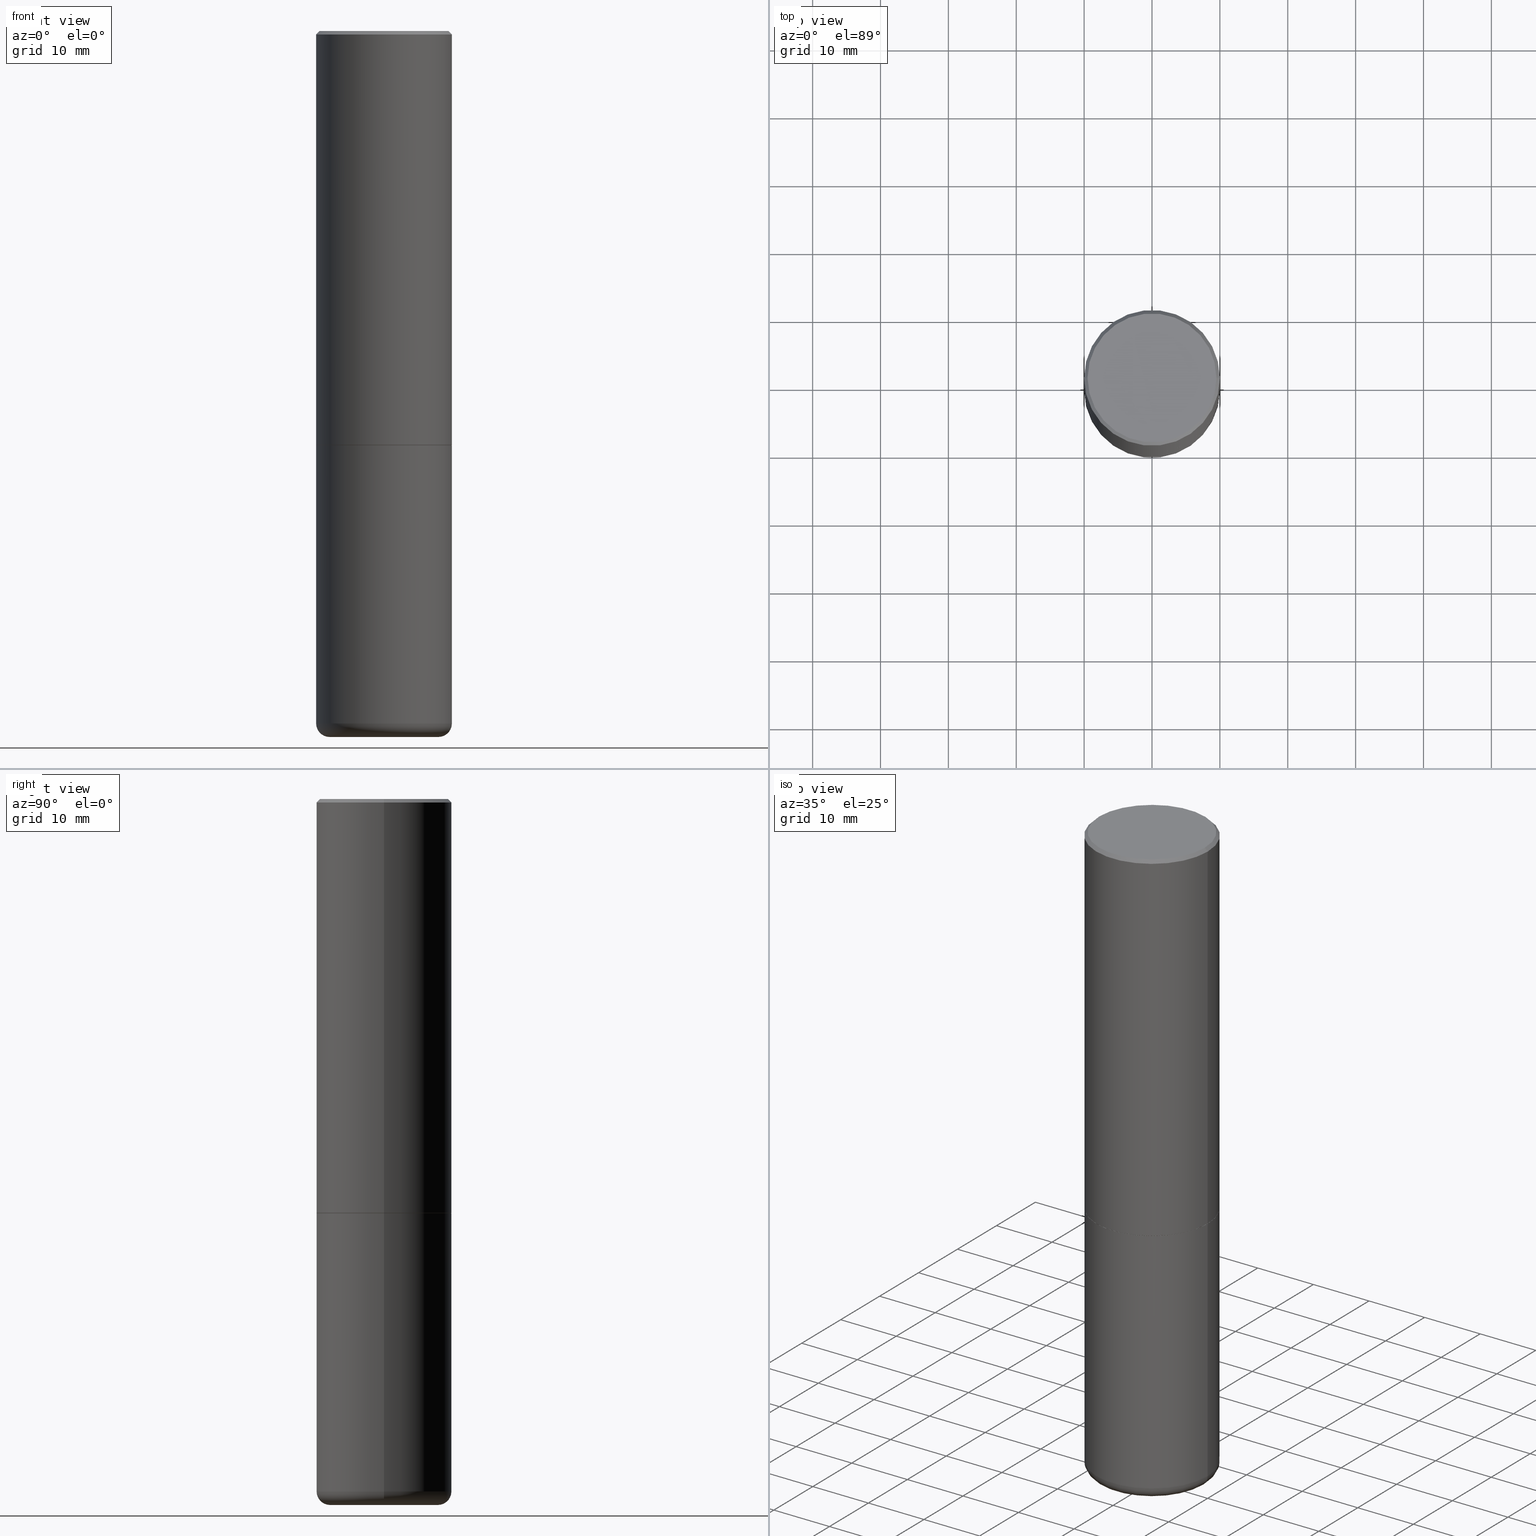
[diagram: canonical four-view strip — front | top / right | iso, engineering-drawing reading convention]
A machine part, canonical four-view strip (front | top / right | iso — engineering-drawing reading convention). The complete STEP part file that produces these views, byte-faithful:
ISO-10303-21;
HEADER;
FILE_DESCRIPTION (( 'STEP AP203' ),
    '1' );
FILE_NAME ('47064.STEP',
    '2024-03-05T16:49:10',
    ( '' ),
    ( '' ),
    'SwSTEP 2.0',
    'SolidWorks 2023',
    '' );
FILE_SCHEMA (( 'CONFIG_CONTROL_DESIGN' ));
ENDSEC;

DATA;
#1 = EDGE_CURVE ( 'NONE', #387, #342, #312, .T. ) ;
#2 = ORIENTED_EDGE ( 'NONE', *, *, #54, .T. ) ;
#3 = CARTESIAN_POINT ( 'NONE',  ( 1.001297202692504102E-28, -1.429587034189325834E-14, -4.094500000000000028 ) ) ;
#4 = CIRCLE ( 'NONE', #60, 0.3937000000000000499 ) ;
#5 = CIRCLE ( 'NONE', #304, 0.3937000000000000499 ) ;
#6 = LINE ( 'NONE', #330, #52 ) ;
#7 = LINE ( 'NONE', #104, #93 ) ;
#8 = EDGE_CURVE ( 'NONE', #122, #282, #148, .T. ) ;
#9 = PERSON_AND_ORGANIZATION_ROLE ( 'creator' ) ;
#10 = AXIS2_PLACEMENT_3D ( 'NONE', #226, #199, #323 ) ;
#11 = FACE_OUTER_BOUND ( 'NONE', #56, .T. ) ;
#12 = CARTESIAN_POINT ( 'NONE',  ( 0.000000000000000000, 0.000000000000000000, 0.000000000000000000 ) ) ;
#13 = DIRECTION ( 'NONE',  ( 1.000000000000000000, -6.982962677686268288E-15, 0.000000000000000000 ) ) ;
#14 = CARTESIAN_POINT ( 'NONE',  ( 0.3937000000000002720, -1.113084250823194063E-14, -2.400600000000000289 ) ) ;
#15 = DIRECTION ( 'NONE',  ( -1.000000000000000000, 6.982962677686265922E-15, -4.876176775795935793E-29 ) ) ;
#16 = CARTESIAN_POINT ( 'NONE',  ( 0.3736999999999997546, -2.667287895133366781E-15, 2.219626494852398384E-16 ) ) ;
#17 = CARTESIAN_POINT ( 'NONE',  ( 0.3926999999999999935, -1.112735102689309604E-14, -2.401600000000000179 ) ) ;
#18 = CONICAL_SURFACE ( 'NONE', #378, 0.3937000000000000499, 0.7853981633974472798 ) ;
#19 = AXIS2_PLACEMENT_3D ( 'NONE', #193, #318, #198 ) ;
#20 = CC_DESIGN_APPROVAL ( #47, ( #188 ) ) ;
#21 = VERTEX_POINT ( 'NONE', #66 ) ;
#22 = ORIENTED_EDGE ( 'NONE', *, *, #339, .T. ) ;
#23 = ADVANCED_FACE ( 'NONE', ( #359 ), #18, .T. ) ;
#24 = EDGE_LOOP ( 'NONE', ( #59, #129, #281, #131 ) ) ;
#25 = AXIS2_PLACEMENT_3D ( 'NONE', #136, #267, #108 ) ;
#26 = APPROVAL_PERSON_ORGANIZATION ( #116, #203, #373 ) ;
#27 = ORIENTED_EDGE ( 'NONE', *, *, #249, .F. ) ;
#28 = CARTESIAN_POINT ( 'NONE',  ( 9.820513631878272860E-29, -1.402109076052630500E-14, -4.015800000000000480 ) ) ;
#29 = DIRECTION ( 'NONE',  ( 1.000000000000000000, -6.982962677686267499E-15, 0.000000000000000000 ) ) ;
#30 = DIRECTION ( 'NONE',  ( -2.445468806185136597E-29, 3.491481338843145583E-15, 1.000000000000000000 ) ) ;
#31 = CARTESIAN_POINT ( 'NONE',  ( 4.890937612370294178E-31, -6.982962677686321191E-17, -0.02000000000000008715 ) ) ;
#32 = ORIENTED_EDGE ( 'NONE', *, *, #416, .T. ) ;
#33 = CARTESIAN_POINT ( 'NONE',  ( 0.3937000000000000499, -2.749192406205083217E-15, 1.919750796630860172E-29 ) ) ;
#34 = CARTESIAN_POINT ( 'NONE',  ( 5.870592416128038746E-29, -8.381650102026855834E-15, -2.400600000000000289 ) ) ;
#35 = AXIS2_PLACEMENT_3D ( 'NONE', #299, #58, #180 ) ;
#36 = ADVANCED_FACE ( 'NONE', ( #414 ), #177, .T. ) ;
#37 = CARTESIAN_POINT ( 'NONE',  ( 0.000000000000000000, 0.000000000000000000, 0.000000000000000000 ) ) ;
#38 = COORDINATED_UNIVERSAL_TIME_OFFSET ( 5, 0, .BEHIND. ) ;
#39 = DIRECTION ( 'NONE',  ( 1.000000000000000000, -6.982962677686265922E-15, 0.000000000000000000 ) ) ;
#40 = CARTESIAN_POINT ( 'NONE',  ( 0.3937000000000000499, -2.770807688499515734E-15, -0.02000000000000008715 ) ) ;
#41 = DIRECTION ( 'NONE',  ( 1.000000000000000000, -6.982962677686265133E-15, 0.000000000000000000 ) ) ;
#42 = VERTEX_POINT ( 'NONE', #106 ) ;
#43 = FACE_OUTER_BOUND ( 'NONE', #119, .T. ) ;
#44 = CARTESIAN_POINT ( 'NONE',  ( 5.873037884934224349E-29, -8.385141583365698841E-15, -2.401600000000000179 ) ) ;
#45 = AXIS2_PLACEMENT_3D ( 'NONE', #44, #385, #153 ) ;
#46 = DIRECTION ( 'NONE',  ( -0.7071067811866199593, 7.493145998870616062E-15, 0.7071067811864750752 ) ) ;
#47 = APPROVAL ( #215, 'UNSPECIFIED' ) ;
#48 = ADVANCED_FACE ( 'NONE', ( #242 ), #399, .T. ) ;
#49 = CARTESIAN_POINT ( 'NONE',  ( 5.873037884934224349E-29, -8.385141583365698841E-15, -2.401600000000000179 ) ) ;
#50 = EDGE_CURVE ( 'NONE', #183, #21, #270, .T. ) ;
#51 = LINE ( 'NONE', #179, #141 ) ;
#52 = VECTOR ( 'NONE', #128, 39.37007874015748143 ) ;
#53 = ORIENTED_EDGE ( 'NONE', *, *, #50, .T. ) ;
#54 = EDGE_CURVE ( 'NONE', #42, #357, #4, .T. ) ;
#55 = LINE ( 'NONE', #139, #216 ) ;
#56 = EDGE_LOOP ( 'NONE', ( #247, #114, #186, #91 ) ) ;
#57 = DIMENSIONAL_EXPONENTS ( 1.000000000000000000, 0.000000000000000000, 0.000000000000000000, 0.000000000000000000, 0.000000000000000000, 0.000000000000000000, 0.000000000000000000 ) ;
#58 = DIRECTION ( 'NONE',  ( -2.445468806185136597E-29, 3.491481338843145583E-15, 1.000000000000000000 ) ) ;
#59 = ORIENTED_EDGE ( 'NONE', *, *, #157, .F. ) ;
#60 = AXIS2_PLACEMENT_3D ( 'NONE', #164, #172, #209 ) ;
#61 = DIRECTION ( 'NONE',  ( -2.445468806185136597E-29, 3.491481338843145583E-15, 1.000000000000000000 ) ) ;
#62 = TOROIDAL_SURFACE ( 'NONE', #235, 0.3150000000000000577, 0.07869999999999965912 ) ;
#63 = CARTESIAN_POINT ( 'NONE',  ( -0.3937000000000003830, -1.428333113714341032E-15, -2.400600000000000289 ) ) ;
#64 = VERTEX_POINT ( 'NONE', #243 ) ;
#65 = DIRECTION ( 'NONE',  ( 1.000000000000000000, -6.982962677686267499E-15, 0.000000000000000000 ) ) ;
#66 = CARTESIAN_POINT ( 'NONE',  ( -0.3937000000000000499, -8.405709421258487133E-15, -2.401600000000000179 ) ) ;
#67 = PLANE ( 'NONE',  #256 ) ;
#68 = ADVANCED_FACE ( 'NONE', ( #333 ), #275, .T. ) ;
#69 = CARTESIAN_POINT ( 'NONE',  ( 0.3926999999999999935, -1.112735102689309604E-14, -2.401600000000000179 ) ) ;
#70 = VERTEX_POINT ( 'NONE', #232 ) ;
#71 = CARTESIAN_POINT ( 'NONE',  ( 0.3937000000000000499, -1.113433398957078206E-14, -2.401600000000000179 ) ) ;
#72 = CARTESIAN_POINT ( 'NONE',  ( -0.3736999999999997546, 2.644447966039789058E-15, 2.219626494852030085E-16 ) ) ;
#73 = CARTESIAN_POINT ( 'NONE',  ( 5.873037884934224349E-29, -8.385141583365698841E-15, -2.401600000000000179 ) ) ;
#74 = ADVANCED_FACE ( 'NONE', ( #159 ), #67, .F. ) ;
#75 = AXIS2_PLACEMENT_3D ( 'NONE', #295, #134, #272 ) ;
#76 = LOCAL_TIME ( 11, 49, 10.00000000000000000, #302 ) ;
#77 = CARTESIAN_POINT ( 'NONE',  ( -0.3926999999999999935, -5.594840260035785063E-15, -2.401600000000000179 ) ) ;
#78 = DIRECTION ( 'NONE',  ( -2.445468806185136597E-29, 3.491481338843145583E-15, 1.000000000000000000 ) ) ;
#79 = PRODUCT_DEFINITION ( 'UNKNOWN', '', #188, #230 ) ;
#80 = ADVANCED_FACE ( 'NONE', ( #252 ), #166, .T. ) ;
#81 = CIRCLE ( 'NONE', #271, 0.3937000000000000499 ) ;
#82 = FACE_OUTER_BOUND ( 'NONE', #278, .T. ) ;
#83 = EDGE_LOOP ( 'NONE', ( #53, #167 ) ) ;
#84 = CARTESIAN_POINT ( 'NONE',  ( -0.3150000000000000577, -1.164067236704386707E-14, -4.094500000000000028 ) ) ;
#85 = AXIS2_PLACEMENT_3D ( 'NONE', #12, #269, #273 ) ;
#86 = AXIS2_PLACEMENT_3D ( 'NONE', #328, #317, #408 ) ;
#87 = ORIENTED_EDGE ( 'NONE', *, *, #123, .F. ) ;
#88 = FACE_OUTER_BOUND ( 'NONE', #374, .T. ) ;
#89 = ORIENTED_EDGE ( 'NONE', *, *, #383, .F. ) ;
#90 =( LENGTH_UNIT ( ) NAMED_UNIT ( * ) SI_UNIT ( $, .METRE. ) );
#91 = ORIENTED_EDGE ( 'NONE', *, *, #137, .F. ) ;
#92 = LINE ( 'NONE', #69, #404 ) ;
#93 = VECTOR ( 'NONE', #171, 39.37007874015748143 ) ;
#94 = LINE ( 'NONE', #77, #287 ) ;
#95 = EDGE_CURVE ( 'NONE', #342, #340, #92, .T. ) ;
#96 = CYLINDRICAL_SURFACE ( 'NONE', #221, 0.3937000000000000499 ) ;
#97 = CARTESIAN_POINT ( 'NONE',  ( 5.873037884934224349E-29, -8.385141583365698841E-15, -2.401600000000000179 ) ) ;
#98 = AXIS2_PLACEMENT_3D ( 'NONE', #231, #351, #65 ) ;
#99 = APPROVAL_PERSON_ORGANIZATION ( #369, #354, #372 ) ;
#100 = DIRECTION ( 'NONE',  ( 1.000000000000000000, -6.982962677686267499E-15, 0.000000000000000000 ) ) ;
#101 = DIRECTION ( 'NONE',  ( -2.445468806185136597E-29, 3.491481338843145583E-15, 1.000000000000000000 ) ) ;
#102 = CLOSED_SHELL ( 'NONE', ( #204, #143, #239, #307, #234, #345 ) ) ;
#103 = CC_DESIGN_APPROVAL ( #354, ( #211 ) ) ;
#104 = CARTESIAN_POINT ( 'NONE',  ( -0.3937000000000000499, 2.679362779428219918E-15, -0.02000000000000008715 ) ) ;
#105 = DIRECTION ( 'NONE',  ( 0.000000000000000000, 0.000000000000000000, 1.000000000000000000 ) ) ;
#106 = CARTESIAN_POINT ( 'NONE',  ( -0.3937000000000000499, 2.679362779428219918E-15, -0.02000000000000008715 ) ) ;
#107 = EDGE_CURVE ( 'NONE', #282, #122, #400, .T. ) ;
#108 = DIRECTION ( 'NONE',  ( 1.000000000000000000, -6.982962677686265133E-15, 0.000000000000000000 ) ) ;
#109 = CC_DESIGN_PERSON_AND_ORGANIZATION_ASSIGNMENT ( #308, #174, ( #211 ) ) ;
#110 = VECTOR ( 'NONE', #194, 39.37007874015748143 ) ;
#111 = APPROVAL_ROLE ( '' ) ;
#112 = ORIENTED_EDGE ( 'NONE', *, *, #213, .T. ) ;
#113 = DIRECTION ( 'NONE',  ( -2.445468806185136597E-29, 3.491481338843145583E-15, 1.000000000000000000 ) ) ;
#114 = ORIENTED_EDGE ( 'NONE', *, *, #249, .T. ) ;
#115 = PERSON_AND_ORGANIZATION ( #303, #417 ) ;
#116 = PERSON_AND_ORGANIZATION ( #303, #417 ) ;
#117 = CC_DESIGN_PERSON_AND_ORGANIZATION_ASSIGNMENT ( #260, #9, ( #79 ) ) ;
#118 = ORIENTED_EDGE ( 'NONE', *, *, #339, .F. ) ;
#119 = EDGE_LOOP ( 'NONE', ( #192, #344, #154, #118 ) ) ;
#120 = DIRECTION ( 'NONE',  ( -1.000000000000000000, 6.982962677686265922E-15, 0.000000000000000000 ) ) ;
#121 = COORDINATED_UNIVERSAL_TIME_OFFSET ( 5, 0, .BEHIND. ) ;
#122 = VERTEX_POINT ( 'NONE', #189 ) ;
#123 = EDGE_CURVE ( 'NONE', #64, #70, #158, .T. ) ;
#124 = AXIS2_PLACEMENT_3D ( 'NONE', #37, #163, #144 ) ;
#125 = DIRECTION ( 'NONE',  ( -1.000000000000000000, 7.105427357601001859E-15, 0.000000000000000000 ) ) ;
#126 = PLANE ( 'NONE',  #10 ) ;
#127 = DIRECTION ( 'NONE',  ( -1.000000000000000000, 6.982962677686265922E-15, -4.876176775795935793E-29 ) ) ;
#128 = DIRECTION ( 'NONE',  ( 0.7071067811865467956, -7.319954787623254468E-15, -0.7071067811865482389 ) ) ;
#129 = ORIENTED_EDGE ( 'NONE', *, *, #1, .T. ) ;
#130 = APPROVAL_DATE_TIME ( #258, #203 ) ;
#131 = ORIENTED_EDGE ( 'NONE', *, *, #169, .F. ) ;
#132 = AXIS2_PLACEMENT_3D ( 'NONE', #255, #105, #362 ) ;
#133 = EDGE_CURVE ( 'NONE', #342, #387, #365, .T. ) ;
#134 = DIRECTION ( 'NONE',  ( -2.445468806185136597E-29, 3.491481338843145583E-15, 1.000000000000000000 ) ) ;
#135 = CIRCLE ( 'NONE', #250, 0.07869999999999963136 ) ;
#136 = CARTESIAN_POINT ( 'NONE',  ( 5.873037884934224349E-29, -8.385141583365698841E-15, -2.401600000000000179 ) ) ;
#137 = EDGE_CURVE ( 'NONE', #64, #183, #257, .T. ) ;
#138 = COORDINATED_UNIVERSAL_TIME_OFFSET ( 5, 0, .BEHIND. ) ;
#139 = CARTESIAN_POINT ( 'NONE',  ( -0.3937000000000000499, 2.797406750687514786E-15, -1.936584745033356735E-29 ) ) ;
#140 = PERSON_AND_ORGANIZATION ( #303, #417 ) ;
#141 = VECTOR ( 'NONE', #241, 39.37007874015748143 ) ;
#142 = TOROIDAL_SURFACE ( 'NONE', #381, 0.3150000000000000577, 0.07869999999999965912 ) ;
#143 = ADVANCED_FACE ( 'NONE', ( #321 ), #62, .T. ) ;
#144 = DIRECTION ( 'NONE',  ( 1.000000000000000000, -6.982962677686266711E-15, 4.876176775795935793E-29 ) ) ;
#145 = ORIENTED_EDGE ( 'NONE', *, *, #162, .F. ) ;
#146 = PERSON_AND_ORGANIZATION_ROLE ( 'design_owner' ) ;
#147 = ORIENTED_EDGE ( 'NONE', *, *, #54, .F. ) ;
#148 = CIRCLE ( 'NONE', #245, 0.3150000000000000577 ) ;
#149 = AXIS2_PLACEMENT_3D ( 'NONE', #214, #329, #41 ) ;
#150 = LOCAL_TIME ( 11, 49, 10.00000000000000000, #343 ) ;
#151 = PRODUCT ( '47064', '47064', '', ( #335 ) ) ;
#152 = ORIENTED_EDGE ( 'NONE', *, *, #325, .T. ) ;
#153 = DIRECTION ( 'NONE',  ( 1.000000000000000000, -6.982962677686268288E-15, 0.000000000000000000 ) ) ;
#154 = ORIENTED_EDGE ( 'NONE', *, *, #363, .T. ) ;
#155 = DIRECTION ( 'NONE',  ( -2.445468806185136877E-29, 3.491481338843145188E-15, 1.000000000000000000 ) ) ;
#156 = DIRECTION ( 'NONE',  ( -2.445468806185136597E-29, 3.491481338843145583E-15, 1.000000000000000000 ) ) ;
#157 = EDGE_CURVE ( 'NONE', #387, #350, #94, .T. ) ;
#158 = CIRCLE ( 'NONE', #98, 0.3937000000000000499 ) ;
#159 = FACE_OUTER_BOUND ( 'NONE', #178, .T. ) ;
#160 = DIRECTION ( 'NONE',  ( 2.445468806185136597E-29, -3.491481338843145583E-15, -1.000000000000000000 ) ) ;
#161 = ORIENTED_EDGE ( 'NONE', *, *, #311, .T. ) ;
#162 = EDGE_CURVE ( 'NONE', #218, #42, #7, .T. ) ;
#163 = DIRECTION ( 'NONE',  ( -2.445468806185136597E-29, 3.491481338843145583E-15, 1.000000000000000000 ) ) ;
#164 = CARTESIAN_POINT ( 'NONE',  ( 4.890937612370294178E-31, -6.982962677686321191E-17, -0.02000000000000008715 ) ) ;
#165 = CC_DESIGN_DATE_AND_TIME_ASSIGNMENT ( #334, #219, ( #211 ) ) ;
#166 = CONICAL_SURFACE ( 'NONE', #396, 0.3937000000000000499, 0.7853981633974472798 ) ;
#167 = ORIENTED_EDGE ( 'NONE', *, *, #196, .T. ) ;
#168 = CALENDAR_DATE ( 2024, 5, 3 ) ;
#169 = EDGE_CURVE ( 'NONE', #350, #340, #187, .T. ) ;
#170 = CIRCLE ( 'NONE', #86, 0.07869999999999963136 ) ;
#171 = DIRECTION ( 'NONE',  ( -0.7071067811865467956, 2.468850131082249172E-15, -0.7071067811865482389 ) ) ;
#172 = DIRECTION ( 'NONE',  ( -2.445468806185136597E-29, 3.491481338843145583E-15, 1.000000000000000000 ) ) ;
#173 = APPLICATION_CONTEXT ( 'configuration controlled 3d designs of mechanical parts and assemblies' ) ;
#174 = PERSON_AND_ORGANIZATION_ROLE ( 'classification_officer' ) ;
#175 = PRODUCT_RELATED_PRODUCT_CATEGORY ( 'detail', '', ( #151 ) ) ;
#176 = CALENDAR_DATE ( 2024, 5, 3 ) ;
#177 = CONICAL_SURFACE ( 'NONE', #237, 0.3926999999999999935, 0.7853981633975507526 ) ;
#178 = EDGE_LOOP ( 'NONE', ( #152, #200 ) ) ;
#179 = CARTESIAN_POINT ( 'NONE',  ( -0.3937000000000001609, 2.797406750687515575E-15, -1.936584745033357296E-29 ) ) ;
#180 = DIRECTION ( 'NONE',  ( 1.000000000000000000, -6.982962677686266711E-15, 4.877734241229879050E-29 ) ) ;
#181 = PERSON_AND_ORGANIZATION ( #303, #417 ) ;
#182 = ORIENTED_EDGE ( 'NONE', *, *, #280, .F. ) ;
#183 = VERTEX_POINT ( 'NONE', #71 ) ;
#184 = DIRECTION ( 'NONE',  ( 1.000000000000000000, -6.982962677686269077E-15, 4.883557194083114022E-29 ) ) ;
#185 = CC_DESIGN_PERSON_AND_ORGANIZATION_ASSIGNMENT ( #140, #370, ( #188 ) ) ;
#186 = ORIENTED_EDGE ( 'NONE', *, *, #50, .F. ) ;
#187 = CIRCLE ( 'NONE', #331, 0.3937000000000002720 ) ;
#188 = PRODUCT_DEFINITION_FORMATION_WITH_SPECIFIED_SOURCE ( 'ANY', '', #151, .NOT_KNOWN. ) ;
#189 = CARTESIAN_POINT ( 'NONE',  ( 0.3150000000000000577, -1.649550358536443488E-14, -4.094500000000000028 ) ) ;
#190 = PERSON_AND_ORGANIZATION_ROLE ( 'creator' ) ;
#191 = ORIENTED_EDGE ( 'NONE', *, *, #133, .T. ) ;
#192 = ORIENTED_EDGE ( 'NONE', *, *, #416, .F. ) ;
#193 = CARTESIAN_POINT ( 'NONE',  ( 5.873037884934224349E-29, -8.385141583365698841E-15, -2.401600000000000179 ) ) ;
#194 = DIRECTION ( 'NONE',  ( -2.445468806185136877E-29, 3.491481338843145188E-15, 1.000000000000000000 ) ) ;
#195 = DIRECTION ( 'NONE',  ( -1.000000000000000000, 6.982962677686265922E-15, -4.876176775795935793E-29 ) ) ;
#196 = EDGE_CURVE ( 'NONE', #21, #183, #201, .T. ) ;
#197 = DIRECTION ( 'NONE',  ( -2.445468806185136597E-29, 3.491481338843145583E-15, 1.000000000000000000 ) ) ;
#198 = DIRECTION ( 'NONE',  ( 1.000000000000000000, -6.982962677686268288E-15, 0.000000000000000000 ) ) ;
#199 = DIRECTION ( 'NONE',  ( -2.438088387897960049E-29, 3.491481338843145188E-15, 1.000000000000000000 ) ) ;
#200 = ORIENTED_EDGE ( 'NONE', *, *, #280, .T. ) ;
#201 = CIRCLE ( 'NONE', #149, 0.3937000000000000499 ) ;
#202 =( NAMED_UNIT ( * ) PLANE_ANGLE_UNIT ( ) SI_UNIT ( $, .RADIAN. ) );
#203 = APPROVAL ( #384, 'UNSPECIFIED' ) ;
#204 = ADVANCED_FACE ( 'NONE', ( #11 ), #393, .T. ) ;
#205 = PERSON_AND_ORGANIZATION ( #303, #417 ) ;
#206 = DIRECTION ( 'NONE',  ( 1.000000000000000000, -6.982962677686265922E-15, 4.876176775795935793E-29 ) ) ;
#207 = CARTESIAN_POINT ( 'NONE',  ( 9.820513631878272860E-29, -1.402109076052630500E-14, -4.015800000000000480 ) ) ;
#208 = AXIS2_PLACEMENT_3D ( 'NONE', #347, #61, #29 ) ;
#209 = DIRECTION ( 'NONE',  ( 1.000000000000000000, -6.982962677686265922E-15, 0.000000000000000000 ) ) ;
#210 = CYLINDRICAL_SURFACE ( 'NONE', #124, 0.3937000000000001609 ) ;
#211 = SECURITY_CLASSIFICATION ( '', '', #326 ) ;
#212 = APPLICATION_CONTEXT ( 'configuration controlled 3d designs of mechanical parts and assemblies' ) ;
#213 = EDGE_CURVE ( 'NONE', #357, #42, #5, .T. ) ;
#214 = CARTESIAN_POINT ( 'NONE',  ( 5.873037884934224349E-29, -8.385141583365698841E-15, -2.401600000000000179 ) ) ;
#215 = APPROVAL_STATUS ( 'not_yet_approved' ) ;
#216 = VECTOR ( 'NONE', #309, 39.37007874015748143 ) ;
#217 = CC_DESIGN_APPROVAL ( #203, ( #79 ) ) ;
#218 = VERTEX_POINT ( 'NONE', #72 ) ;
#219 = DATE_TIME_ROLE ( 'classification_date' ) ;
#220 = ADVANCED_BREP_SHAPE_REPRESENTATION ( '47064', ( #224, #225, #132 ), #356 ) ;
#221 = AXIS2_PLACEMENT_3D ( 'NONE', #322, #264, #206 ) ;
#222 = EDGE_LOOP ( 'NONE', ( #191, #253, #379, #409 ) ) ;
#223 = ORIENTED_EDGE ( 'NONE', *, *, #363, .F. ) ;
#224 = MANIFOLD_SOLID_BREP ( 'Body-Move/Copy2[1]', #102 ) ;
#225 = MANIFOLD_SOLID_BREP ( 'Body-Move/Copy2[2]', #337 ) ;
#226 = CARTESIAN_POINT ( 'NONE',  ( 5.873037884934224349E-29, -8.385141583365698841E-15, -2.401600000000000179 ) ) ;
#227 = ORIENTED_EDGE ( 'NONE', *, *, #133, .F. ) ;
#228 = DIRECTION ( 'NONE',  ( 0.7071067811866199593, -2.468850131083015945E-15, 0.7071067811864750752 ) ) ;
#229 = ORIENTED_EDGE ( 'NONE', *, *, #291, .F. ) ;
#230 = DESIGN_CONTEXT ( 'detailed design', #212, 'design' ) ;
#231 = CARTESIAN_POINT ( 'NONE',  ( 9.820513631878272860E-29, -1.402109076052630500E-14, -4.015800000000000480 ) ) ;
#232 = CARTESIAN_POINT ( 'NONE',  ( -0.3936999999999998279, -1.122368400983879100E-14, -4.015800000000000480 ) ) ;
#233 = CARTESIAN_POINT ( 'NONE',  ( 1.497222849818668150E-28, -7.193932811697495367E-15, -4.094500000000000028 ) ) ;
#234 = ADVANCED_FACE ( 'NONE', ( #43 ), #142, .T. ) ;
#235 = AXIS2_PLACEMENT_3D ( 'NONE', #207, #332, #336 ) ;
#236 = DIRECTION ( 'NONE',  ( 1.000000000000000000, -6.982962677686268288E-15, 0.000000000000000000 ) ) ;
#237 = AXIS2_PLACEMENT_3D ( 'NONE', #73, #300, #13 ) ;
#238 = LOCAL_TIME ( 11, 49, 10.00000000000000000, #38 ) ;
#239 = ADVANCED_FACE ( 'NONE', ( #268 ), #277, .F. ) ;
#240 = CALENDAR_DATE ( 2024, 5, 3 ) ;
#241 = DIRECTION ( 'NONE',  ( -2.445468806185136877E-29, 3.491481338843145188E-15, 1.000000000000000000 ) ) ;
#242 = FACE_OUTER_BOUND ( 'NONE', #316, .T. ) ;
#243 = CARTESIAN_POINT ( 'NONE',  ( 0.3936999999999998279, -1.677028316673138822E-14, -4.015800000000000480 ) ) ;
#244 = CC_DESIGN_PERSON_AND_ORGANIZATION_ASSIGNMENT ( #181, #190, ( #188 ) ) ;
#245 = AXIS2_PLACEMENT_3D ( 'NONE', #3, #392, #100 ) ;
#246 = AXIS2_PLACEMENT_3D ( 'NONE', #233, #348, #195 ) ;
#247 = ORIENTED_EDGE ( 'NONE', *, *, #123, .T. ) ;
#248 = CARTESIAN_POINT ( 'NONE',  ( -5.428027354543142984E-45, 7.749784485978325769E-31, 2.219626494852213988E-16 ) ) ;
#249 = EDGE_CURVE ( 'NONE', #70, #21, #55, .T. ) ;
#250 = AXIS2_PLACEMENT_3D ( 'NONE', #259, #283, #125 ) ;
#251 = ORIENTED_EDGE ( 'NONE', *, *, #291, .T. ) ;
#252 = FACE_OUTER_BOUND ( 'NONE', #310, .T. ) ;
#253 = ORIENTED_EDGE ( 'NONE', *, *, #157, .T. ) ;
#254 = APPLICATION_PROTOCOL_DEFINITION ( 'international standard', 'config_control_design', 1994, #212 ) ;
#255 = CARTESIAN_POINT ( 'NONE',  ( 0.000000000000000000, 0.000000000000000000, 0.000000000000000000 ) ) ;
#256 = AXIS2_PLACEMENT_3D ( 'NONE', #314, #418, #127 ) ;
#257 = LINE ( 'NONE', #33, #341 ) ;
#258 = DATE_AND_TIME ( #261, #238 ) ;
#259 = CARTESIAN_POINT ( 'NONE',  ( -0.3150000000000000577, -1.178288114288198979E-14, -4.015800000000000480 ) ) ;
#260 = PERSON_AND_ORGANIZATION ( #303, #417 ) ;
#261 = CALENDAR_DATE ( 2024, 5, 3 ) ;
#262 = CIRCLE ( 'NONE', #35, 0.3736999999999997546 ) ;
#263 = CARTESIAN_POINT ( 'NONE',  ( 5.870592416128038746E-29, -8.381650102026855834E-15, -2.400600000000000289 ) ) ;
#264 = DIRECTION ( 'NONE',  ( -2.445468806185136597E-29, 3.491481338843145583E-15, 1.000000000000000000 ) ) ;
#265 = ORIENTED_EDGE ( 'NONE', *, *, #8, .T. ) ;
#266 = CARTESIAN_POINT ( 'NONE',  ( 4.890937612370294178E-31, -6.982962677686321191E-17, -0.02000000000000008715 ) ) ;
#267 = DIRECTION ( 'NONE',  ( -2.445468806185136597E-29, 3.491481338843145583E-15, 1.000000000000000000 ) ) ;
#268 = FACE_OUTER_BOUND ( 'NONE', #83, .T. ) ;
#269 = DIRECTION ( 'NONE',  ( -2.445468806185136597E-29, 3.491481338843145583E-15, 1.000000000000000000 ) ) ;
#270 = CIRCLE ( 'NONE', #25, 0.3937000000000000499 ) ;
#271 = AXIS2_PLACEMENT_3D ( 'NONE', #28, #197, #367 ) ;
#272 = DIRECTION ( 'NONE',  ( 1.000000000000000000, -6.982962677686265922E-15, 4.876176775795935793E-29 ) ) ;
#273 = DIRECTION ( 'NONE',  ( 1.000000000000000000, -6.982962677686266711E-15, 4.876176775795935793E-29 ) ) ;
#274 = CALENDAR_DATE ( 2024, 5, 3 ) ;
#275 = CONICAL_SURFACE ( 'NONE', #45, 0.3926999999999999935, 0.7853981633975507526 ) ;
#276 = SHAPE_DEFINITION_REPRESENTATION ( #376, #220 ) ;
#277 = PLANE ( 'NONE',  #389 ) ;
#278 = EDGE_LOOP ( 'NONE', ( #353, #346 ) ) ;
#279 = APPROVAL_DATE_TIME ( #410, #354 ) ;
#280 = EDGE_CURVE ( 'NONE', #313, #218, #380, .T. ) ;
#281 = ORIENTED_EDGE ( 'NONE', *, *, #95, .T. ) ;
#282 = VERTEX_POINT ( 'NONE', #84 ) ;
#283 = DIRECTION ( 'NONE',  ( 7.105427357601001859E-15, 1.000000000000000000, -3.491481338843145583E-15 ) ) ;
#284 = ORIENTED_EDGE ( 'NONE', *, *, #1, .F. ) ;
#285 = DIRECTION ( 'NONE',  ( -1.000000000000000000, 6.982962677686265922E-15, 0.000000000000000000 ) ) ;
#286 = ORIENTED_EDGE ( 'NONE', *, *, #213, .F. ) ;
#287 = VECTOR ( 'NONE', #46, 39.37007874015748143 ) ;
#288 = CC_DESIGN_PERSON_AND_ORGANIZATION_ASSIGNMENT ( #205, #146, ( #151 ) ) ;
#289 = LENGTH_MEASURE_WITH_UNIT ( LENGTH_MEASURE( 0.02539999999999999897 ), #90 );
#290 = EDGE_LOOP ( 'NONE', ( #227, #284 ) ) ;
#291 = EDGE_CURVE ( 'NONE', #350, #42, #51, .T. ) ;
#292 =( NAMED_UNIT ( * ) SI_UNIT ( $, .STERADIAN. ) SOLID_ANGLE_UNIT ( ) );
#293 = ORIENTED_EDGE ( 'NONE', *, *, #325, .F. ) ;
#294 = AXIS2_PLACEMENT_3D ( 'NONE', #248, #402, #366 ) ;
#295 = CARTESIAN_POINT ( 'NONE',  ( 0.000000000000000000, 0.000000000000000000, 0.000000000000000000 ) ) ;
#296 = FACE_OUTER_BOUND ( 'NONE', #377, .T. ) ;
#297 = DATE_AND_TIME ( #240, #76 ) ;
#298 = ADVANCED_FACE ( 'NONE', ( #88 ), #210, .T. ) ;
#299 = CARTESIAN_POINT ( 'NONE',  ( -5.428027354543142984E-45, 7.749784485978325769E-31, 2.219626494852213988E-16 ) ) ;
#300 = DIRECTION ( 'NONE',  ( -2.445468806185136597E-29, 3.491481338843145583E-15, 1.000000000000000000 ) ) ;
#301 = DIRECTION ( 'NONE',  ( 2.438088387897960049E-29, -3.491481338843145188E-15, -1.000000000000000000 ) ) ;
#302 = COORDINATED_UNIVERSAL_TIME_OFFSET ( 5, 0, .BEHIND. ) ;
#303 = PERSON ( 'UNSPECIFIED', 'UNSPECIFIED', 'UNSPECIFIED', ('UNSPECIFIED'), ('UNSPECIFIED'), ('UNSPECIFIED') ) ;
#304 = AXIS2_PLACEMENT_3D ( 'NONE', #266, #101, #360 ) ;
#305 = APPROVAL_DATE_TIME ( #398, #47 ) ;
#306 = ORIENTED_EDGE ( 'NONE', *, *, #169, .T. ) ;
#307 = ADVANCED_FACE ( 'NONE', ( #296 ), #96, .T. ) ;
#308 = PERSON_AND_ORGANIZATION ( #303, #417 ) ;
#309 = DIRECTION ( 'NONE',  ( -2.445468806185136877E-29, 3.491481338843145188E-15, 1.000000000000000000 ) ) ;
#310 = EDGE_LOOP ( 'NONE', ( #182, #161, #112, #145 ) ) ;
#311 = EDGE_CURVE ( 'NONE', #313, #357, #6, .T. ) ;
#312 = CIRCLE ( 'NONE', #388, 0.3926999999999999935 ) ;
#313 = VERTEX_POINT ( 'NONE', #16 ) ;
#314 = CARTESIAN_POINT ( 'NONE',  ( 2.609533152651355831E-15, 0.3736999999999997546, -1.193785251583072147E-15 ) ) ;
#315 = DIRECTION ( 'NONE',  ( 2.445468806185136597E-29, -3.491481338843145583E-15, -1.000000000000000000 ) ) ;
#316 = EDGE_LOOP ( 'NONE', ( #229, #306, #401, #147 ) ) ;
#317 = DIRECTION ( 'NONE',  ( -6.982962677686266711E-15, -1.000000000000000000, 3.491481338843145583E-15 ) ) ;
#318 = DIRECTION ( 'NONE',  ( -2.445468806185136597E-29, 3.491481338843145583E-15, 1.000000000000000000 ) ) ;
#319 = ORIENTED_EDGE ( 'NONE', *, *, #390, .T. ) ;
#320 = FACE_OUTER_BOUND ( 'NONE', #290, .T. ) ;
#321 = FACE_OUTER_BOUND ( 'NONE', #403, .T. ) ;
#322 = CARTESIAN_POINT ( 'NONE',  ( 0.000000000000000000, 0.000000000000000000, 0.000000000000000000 ) ) ;
#323 = DIRECTION ( 'NONE',  ( 1.000000000000000000, -6.982962677686265922E-15, 4.876176775795935793E-29 ) ) ;
#324 = AXIS2_PLACEMENT_3D ( 'NONE', #34, #30, #39 ) ;
#325 = EDGE_CURVE ( 'NONE', #218, #313, #262, .T. ) ;
#326 = SECURITY_CLASSIFICATION_LEVEL ( 'unclassified' ) ;
#327 = UNCERTAINTY_MEASURE_WITH_UNIT (LENGTH_MEASURE( 1.000000000000000082E-05 ), #386, 'distance_accuracy_value', 'NONE');
#328 = CARTESIAN_POINT ( 'NONE',  ( 0.3150000000000000577, -1.622072400399747838E-14, -4.015800000000000480 ) ) ;
#329 = DIRECTION ( 'NONE',  ( -2.445468806185136597E-29, 3.491481338843145583E-15, 1.000000000000000000 ) ) ;
#330 = CARTESIAN_POINT ( 'NONE',  ( 0.3937000000000000499, -2.770807688499515734E-15, -0.02000000000000008715 ) ) ;
#331 = AXIS2_PLACEMENT_3D ( 'NONE', #263, #78, #391 ) ;
#332 = DIRECTION ( 'NONE',  ( -2.445468806185136597E-29, 3.491481338843145583E-15, 1.000000000000000000 ) ) ;
#333 = FACE_OUTER_BOUND ( 'NONE', #24, .T. ) ;
#334 = DATE_AND_TIME ( #168, #382 ) ;
#335 = MECHANICAL_CONTEXT ( 'NONE', #173, 'mechanical' ) ;
#336 = DIRECTION ( 'NONE',  ( 1.000000000000000000, -6.982962677686269077E-15, 4.883557194083114022E-29 ) ) ;
#337 = CLOSED_SHELL ( 'NONE', ( #36, #298, #80, #23, #48, #68, #355, #74 ) ) ;
#338 = APPROVAL_STATUS ( 'not_yet_approved' ) ;
#339 = EDGE_CURVE ( 'NONE', #70, #64, #81, .T. ) ;
#340 = VERTEX_POINT ( 'NONE', #14 ) ;
#341 = VECTOR ( 'NONE', #155, 39.37007874015748143 ) ;
#342 = VERTEX_POINT ( 'NONE', #17 ) ;
#343 = COORDINATED_UNIVERSAL_TIME_OFFSET ( 5, 0, .BEHIND. ) ;
#344 = ORIENTED_EDGE ( 'NONE', *, *, #107, .T. ) ;
#345 = ADVANCED_FACE ( 'NONE', ( #82 ), #412, .T. ) ;
#346 = ORIENTED_EDGE ( 'NONE', *, *, #107, .F. ) ;
#347 = CARTESIAN_POINT ( 'NONE',  ( 1.001297202692504102E-28, -1.429587034189325834E-14, -4.094500000000000028 ) ) ;
#348 = DIRECTION ( 'NONE',  ( 2.438088387897960049E-29, -3.491481338843145188E-15, -1.000000000000000000 ) ) ;
#349 = CIRCLE ( 'NONE', #324, 0.3937000000000002720 ) ;
#350 = VERTEX_POINT ( 'NONE', #63 ) ;
#351 = DIRECTION ( 'NONE',  ( -2.445468806185136597E-29, 3.491481338843145583E-15, 1.000000000000000000 ) ) ;
#352 = CARTESIAN_POINT ( 'NONE',  ( -0.3926999999999999935, -5.589541805687561872E-15, -2.401600000000000179 ) ) ;
#353 = ORIENTED_EDGE ( 'NONE', *, *, #8, .F. ) ;
#354 = APPROVAL ( #338, 'UNSPECIFIED' ) ;
#355 = ADVANCED_FACE ( 'NONE', ( #320 ), #126, .F. ) ;
#356 =( GEOMETRIC_REPRESENTATION_CONTEXT ( 3 ) GLOBAL_UNCERTAINTY_ASSIGNED_CONTEXT ( ( #327 ) ) GLOBAL_UNIT_ASSIGNED_CONTEXT ( ( #386, #202, #292 ) ) REPRESENTATION_CONTEXT ( 'NONE', 'WORKASPACE' ) );
#357 = VERTEX_POINT ( 'NONE', #40 ) ;
#358 = ORIENTED_EDGE ( 'NONE', *, *, #137, .T. ) ;
#359 = FACE_OUTER_BOUND ( 'NONE', #413, .T. ) ;
#360 = DIRECTION ( 'NONE',  ( 1.000000000000000000, -6.982962677686265922E-15, 0.000000000000000000 ) ) ;
#361 = APPROVAL_PERSON_ORGANIZATION ( #115, #47, #111 ) ;
#362 = DIRECTION ( 'NONE',  ( 1.000000000000000000, 0.000000000000000000, 0.000000000000000000 ) ) ;
#363 = EDGE_CURVE ( 'NONE', #122, #64, #170, .T. ) ;
#364 = CARTESIAN_POINT ( 'NONE',  ( 0.3937000000000001609, -2.749192406205084400E-15, 1.919750796630860732E-29 ) ) ;
#365 = CIRCLE ( 'NONE', #19, 0.3926999999999999935 ) ;
#366 = DIRECTION ( 'NONE',  ( 1.000000000000000000, -6.982962677686266711E-15, 4.877734241229879050E-29 ) ) ;
#367 = DIRECTION ( 'NONE',  ( 1.000000000000000000, -6.982962677686267499E-15, 0.000000000000000000 ) ) ;
#368 = ORIENTED_EDGE ( 'NONE', *, *, #162, .T. ) ;
#369 = PERSON_AND_ORGANIZATION ( #303, #417 ) ;
#370 = PERSON_AND_ORGANIZATION_ROLE ( 'design_supplier' ) ;
#371 = ORIENTED_EDGE ( 'NONE', *, *, #196, .F. ) ;
#372 = APPROVAL_ROLE ( '' ) ;
#373 = APPROVAL_ROLE ( '' ) ;
#374 = EDGE_LOOP ( 'NONE', ( #319, #251, #286, #89 ) ) ;
#375 = CARTESIAN_POINT ( 'NONE',  ( 4.890937612370294178E-31, -6.982962677686321191E-17, -0.02000000000000008715 ) ) ;
#376 = PRODUCT_DEFINITION_SHAPE ( 'NONE', 'NONE',  #79 ) ;
#377 = EDGE_LOOP ( 'NONE', ( #27, #22, #358, #371 ) ) ;
#378 = AXIS2_PLACEMENT_3D ( 'NONE', #31, #315, #285 ) ;
#379 = ORIENTED_EDGE ( 'NONE', *, *, #390, .F. ) ;
#380 = CIRCLE ( 'NONE', #294, 0.3736999999999997546 ) ;
#381 = AXIS2_PLACEMENT_3D ( 'NONE', #394, #113, #184 ) ;
#382 = LOCAL_TIME ( 11, 49, 10.00000000000000000, #121 ) ;
#383 = EDGE_CURVE ( 'NONE', #340, #357, #405, .T. ) ;
#384 = APPROVAL_STATUS ( 'not_yet_approved' ) ;
#385 = DIRECTION ( 'NONE',  ( -2.445468806185136597E-29, 3.491481338843145583E-15, 1.000000000000000000 ) ) ;
#386 =( CONVERSION_BASED_UNIT ( 'INCH', #289 ) LENGTH_UNIT ( ) NAMED_UNIT ( #57 ) );
#387 = VERTEX_POINT ( 'NONE', #352 ) ;
#388 = AXIS2_PLACEMENT_3D ( 'NONE', #97, #156, #236 ) ;
#389 = AXIS2_PLACEMENT_3D ( 'NONE', #49, #301, #15 ) ;
#390 = EDGE_CURVE ( 'NONE', #340, #350, #349, .T. ) ;
#391 = DIRECTION ( 'NONE',  ( 1.000000000000000000, -6.982962677686265922E-15, 0.000000000000000000 ) ) ;
#392 = DIRECTION ( 'NONE',  ( -2.445468806185136597E-29, 3.491481338843145583E-15, 1.000000000000000000 ) ) ;
#393 = CYLINDRICAL_SURFACE ( 'NONE', #75, 0.3937000000000000499 ) ;
#394 = CARTESIAN_POINT ( 'NONE',  ( 9.820513631878272860E-29, -1.402109076052630500E-14, -4.015800000000000480 ) ) ;
#395 = CC_DESIGN_DATE_AND_TIME_ASSIGNMENT ( #297, #406, ( #79 ) ) ;
#396 = AXIS2_PLACEMENT_3D ( 'NONE', #375, #160, #120 ) ;
#397 = LOCAL_TIME ( 11, 49, 10.00000000000000000, #138 ) ;
#398 = DATE_AND_TIME ( #274, #397 ) ;
#399 = CYLINDRICAL_SURFACE ( 'NONE', #85, 0.3937000000000001609 ) ;
#400 = CIRCLE ( 'NONE', #208, 0.3150000000000000577 ) ;
#401 = ORIENTED_EDGE ( 'NONE', *, *, #383, .T. ) ;
#402 = DIRECTION ( 'NONE',  ( -2.445468806185136597E-29, 3.491481338843145583E-15, 1.000000000000000000 ) ) ;
#403 = EDGE_LOOP ( 'NONE', ( #265, #32, #87, #223 ) ) ;
#404 = VECTOR ( 'NONE', #228, 39.37007874015748143 ) ;
#405 = LINE ( 'NONE', #364, #110 ) ;
#406 = DATE_TIME_ROLE ( 'creation_date' ) ;
#407 = CC_DESIGN_SECURITY_CLASSIFICATION ( #211, ( #188 ) ) ;
#408 = DIRECTION ( 'NONE',  ( 1.000000000000000000, -6.982962677686277755E-15, 0.000000000000000000 ) ) ;
#409 = ORIENTED_EDGE ( 'NONE', *, *, #95, .F. ) ;
#410 = DATE_AND_TIME ( #176, #150 ) ;
#411 = APPLICATION_PROTOCOL_DEFINITION ( 'international standard', 'config_control_design', 1994, #173 ) ;
#412 = PLANE ( 'NONE',  #246 ) ;
#413 = EDGE_LOOP ( 'NONE', ( #415, #293, #368, #2 ) ) ;
#414 = FACE_OUTER_BOUND ( 'NONE', #222, .T. ) ;
#415 = ORIENTED_EDGE ( 'NONE', *, *, #311, .F. ) ;
#416 = EDGE_CURVE ( 'NONE', #282, #70, #135, .T. ) ;
#417 = ORGANIZATION ( 'UNSPECIFIED', 'UNSPECIFIED', '' ) ;
#418 = DIRECTION ( 'NONE',  ( 2.438088387897960049E-29, -3.491481338843145188E-15, -1.000000000000000000 ) ) ;
ENDSEC;
END-ISO-10303-21;
